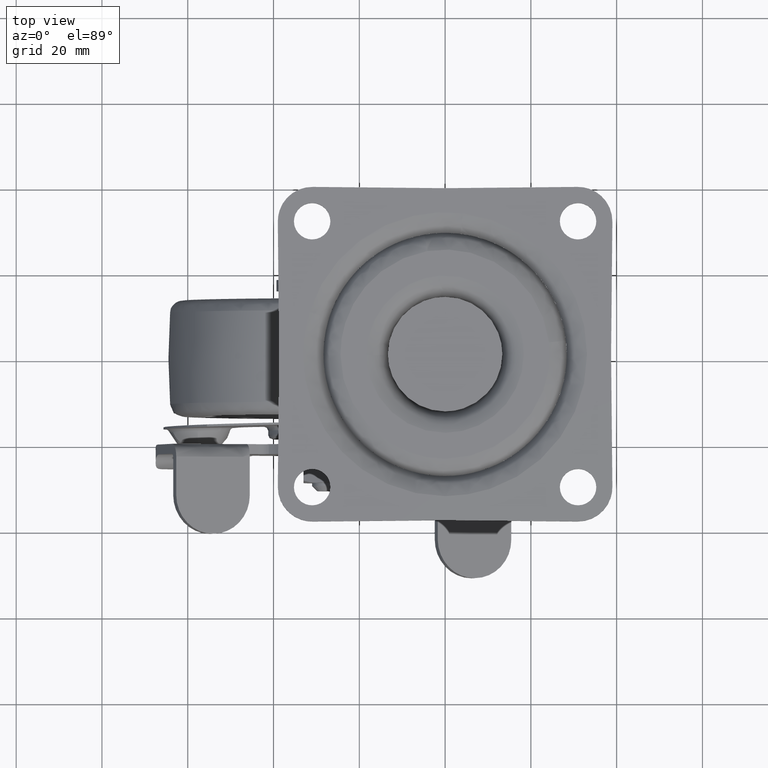
[diagram: clean part render]
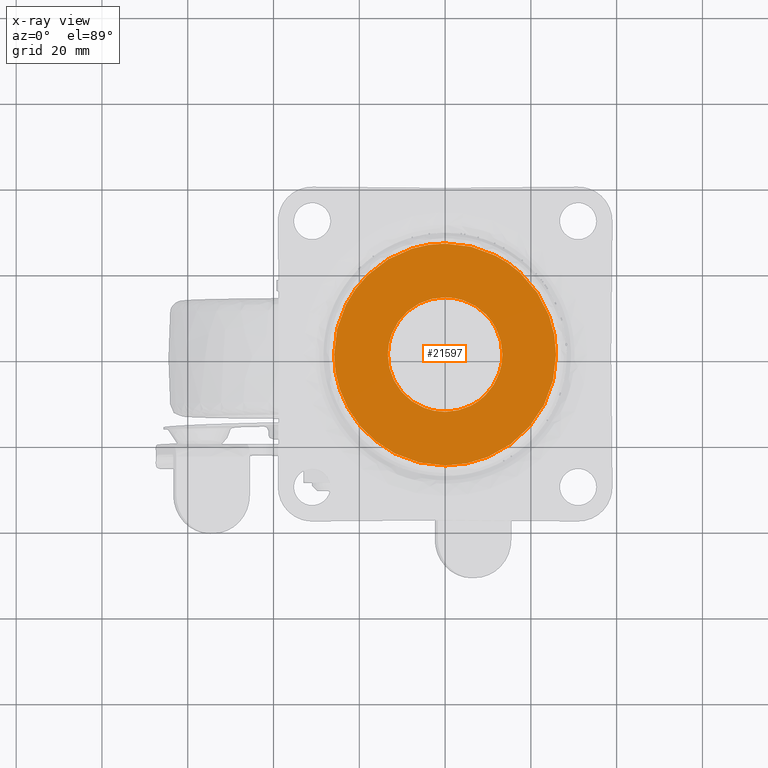
[diagram: x-ray — body ghosted, one internal face saturated and labeled with its STEP entity id]
A machine part, top view, then the same camera in x-ray: the body is ghosted and one INTERNAL B-rep face — a face not visible from any outside direction — is saturated and labeled: STEP entity #21597.
In plain terms, the highlighted face is a freeform B-spline surface patch.
Its self-contained STEP definition (entity closure, byte-faithful):
#19148=CARTESIAN_POINT('',(9.522148338718090,9.357389283720961,-6.357000999999910));
#19149=VERTEX_POINT('',#19148);
#19155=CARTESIAN_POINT('',(-0.000002327860077,13.350357999999799,-6.357000999999910));
#19156=VERTEX_POINT('',#19155);
#19157=CARTESIAN_POINT('',(9.522148338718090,9.357389283720961,-6.357000999999910));
#19158=CARTESIAN_POINT('',(8.864303249871275,10.027039644784930,-6.357000999999928));
#19159=CARTESIAN_POINT('',(7.620857352587254,11.050119760353761,-6.357000999999904));
#19160=CARTESIAN_POINT('',(5.348030758189267,12.317865382148639,-6.357000999999905));
#19161=CARTESIAN_POINT('',(2.871296581265731,13.145735621697460,-6.357000999999919));
#19162=CARTESIAN_POINT('',(0.938711021823126,13.350495056528921,-6.357000999999906));
#19163=CARTESIAN_POINT('',(-0.000002327860077,13.350357999999799,-6.357000999999910));
#19164=B_SPLINE_CURVE_WITH_KNOTS('',3,(#19157,#19158,#19159,#19160,#19161,#19162,#19163),.UNSPECIFIED.,.F.,.U.,(4,1,1,1,4),(0.000000040950418,2.816136285490698,4.804026126292881,7.785784243456143,10.601920488016370),.UNSPECIFIED.);
#19165=EDGE_CURVE('',#19149,#19156,#19164,.T.);
#19167=CARTESIAN_POINT('',(-13.350358000000000,0.0,-6.357000999999910));
#19168=VERTEX_POINT('',#19167);
#19169=CARTESIAN_POINT('',(-0.000002327860077,13.350357999999799,-6.357000999999910));
#19170=CARTESIAN_POINT('',(-1.310754461551973,13.350986540732899,-6.357000999999914));
#19171=CARTESIAN_POINT('',(-3.330977720730344,13.050264969731449,-6.357000999999889));
#19172=CARTESIAN_POINT('',(-5.880590458144964,12.048608790499310,-6.357000999999941));
#19173=CARTESIAN_POINT('',(-7.814266161715539,10.905718966154870,-6.357000999999880));
#19174=CARTESIAN_POINT('',(-9.734686270428933,9.269742293055463,-6.357000999999925));
#19175=CARTESIAN_POINT('',(-11.188247926708041,7.407209809880265,-6.357000999999928));
#19176=CARTESIAN_POINT('',(-12.193942124779561,5.525186448929405,-6.357000999999870));
#19177=CARTESIAN_POINT('',(-13.066648645106021,3.221795794102689,-6.357000999999971));
#19178=CARTESIAN_POINT('',(-13.350877152033879,1.310733384612928,-6.357000999999853));
#19179=CARTESIAN_POINT('',(-13.350358000000000,0.0,-6.357000999999910));
#19180=B_SPLINE_CURVE_WITH_KNOTS('',3,(#19169,#19170,#19171,#19172,#19173,#19174,#19175,#19176,#19177,#19178,#19179),.UNSPECIFIED.,.F.,.U.,(4,1,1,1,1,1,1,1,4),(0.000000136620827,3.932013850790348,6.061885524718758,8.191769235744308,10.649207049722520,13.598237419871030,15.236606809522970,17.038813266025699,20.970823577971242),.UNSPECIFIED.);
#19181=EDGE_CURVE('',#19156,#19168,#19180,.T.);
#19183=CARTESIAN_POINT('',(0.000002327859918,-13.350357999999799,-6.357000999999910));
#19184=VERTEX_POINT('',#19183);
#19185=CARTESIAN_POINT('',(-13.350358000000000,0.0,-6.357000999999910));
#19186=CARTESIAN_POINT('',(-13.350910071931660,-1.256127932074303,-6.357000999999908));
#19187=CARTESIAN_POINT('',(-13.086246319340420,-3.112580868107441,-6.357000999999909));
#19188=CARTESIAN_POINT('',(-12.148403000629880,-5.683710718440482,-6.357000999999920));
#19189=CARTESIAN_POINT('',(-10.877351456790411,-7.927907598929894,-6.357000999999880));
#19190=CARTESIAN_POINT('',(-9.066735710838735,-9.925577101206736,-6.357000999999973));
#19191=CARTESIAN_POINT('',(-6.989032541080070,-11.446581095342530,-6.357000999999870));
#19192=CARTESIAN_POINT('',(-5.079575822632185,-12.407711192023800,-6.357000999999905));
#19193=CARTESIAN_POINT('',(-2.730451907387059,-13.151934426589071,-6.357000999999930));
#19194=CARTESIAN_POINT('',(-1.037623963658211,-13.350596390898559,-6.357000999999896));
#19195=CARTESIAN_POINT('',(0.000002327859918,-13.350357999999799,-6.357000999999910));
#19196=B_SPLINE_CURVE_WITH_KNOTS('',3,(#19185,#19186,#19187,#19188,#19189,#19190,#19191,#19192,#19193,#19194,#19195),.UNSPECIFIED.,.F.,.U.,(4,1,1,1,1,1,1,1,4),(0.000000135812247,3.768174945819020,5.570381349995165,8.191770259858890,11.468412884655690,13.598239121577951,15.891955446204321,17.858000252816531,20.970826202028459),.UNSPECIFIED.);
#19197=EDGE_CURVE('',#19168,#19184,#19196,.T.);
#19199=CARTESIAN_POINT('',(9.357390095503316,-9.522149172600425,-6.357000999999910));
#19200=VERTEX_POINT('',#19199);
#19201=CARTESIAN_POINT('',(0.000002327859918,-13.350357999999799,-6.357000999999910));
#19202=CARTESIAN_POINT('',(1.026106999777285,-13.350561673149921,-6.357000999999904));
#19203=CARTESIAN_POINT('',(2.916149440708255,-13.131360024900030,-6.357000999999929));
#19204=CARTESIAN_POINT('',(5.330665912850595,-12.310621076349451,-6.357000999999901));
#19205=CARTESIAN_POINT('',(7.471854117197442,-11.147610937970770,-6.357000999999914));
#19206=CARTESIAN_POINT('',(8.702665180749190,-10.165745996083791,-6.357000999999910));
#19207=CARTESIAN_POINT('',(9.357390095503316,-9.522149172600425,-6.357000999999910));
#19208=B_SPLINE_CURVE_WITH_KNOTS('',3,(#19201,#19202,#19203,#19204,#19205,#19206,#19207),.UNSPECIFIED.,.F.,.U.,(4,1,1,1,4),(0.000000036682174,3.078275371522725,5.670465747897151,7.614663157738606,10.368904440006069),.UNSPECIFIED.);
#19209=EDGE_CURVE('',#19184,#19200,#19208,.T.);
#19246=CARTESIAN_POINT('',(13.350358000000000,0.0,-6.357000999999910));
#19247=VERTEX_POINT('',#19246);
#19248=CARTESIAN_POINT('',(9.357390095503316,-9.522149172600425,-6.357000999999910));
#19249=CARTESIAN_POINT('',(10.027009171883170,-8.864282152069828,-6.357000999999908));
#19250=CARTESIAN_POINT('',(11.261940429390700,-7.363696293230923,-6.357000999999914));
#19251=CARTESIAN_POINT('',(12.448185274147409,-5.037232382322500,-6.357000999999910));
#19252=CARTESIAN_POINT('',(13.180714268055119,-2.539973715901642,-6.357000999999905));
#19253=CARTESIAN_POINT('',(13.350513171225961,-0.938718086018640,-6.357000999999936));
#19254=CARTESIAN_POINT('',(13.350358000000000,0.0,-6.357000999999910));
#19255=B_SPLINE_CURVE_WITH_KNOTS('',3,(#19248,#19249,#19250,#19251,#19252,#19253,#19254),.UNSPECIFIED.,.F.,.U.,(4,1,1,1,4),(0.000000040935406,2.816135791343934,5.797893385308317,7.785782877279928,10.601918627668789),.UNSPECIFIED.);
#19256=EDGE_CURVE('',#19200,#19247,#19255,.T.);
#19258=CARTESIAN_POINT('',(13.350358000000000,0.0,-6.357000999999910));
#19259=CARTESIAN_POINT('',(13.350426774446650,0.810068400060128,-6.357000999999920));
#19260=CARTESIAN_POINT('',(13.197553392740110,2.484196059929982,-6.357000999999896));
#19261=CARTESIAN_POINT('',(12.554792135086030,4.727047961933864,-6.357000999999947));
#19262=CARTESIAN_POINT('',(11.403014169646671,7.117294136489965,-6.357000999999879));
#19263=CARTESIAN_POINT('',(10.317334071054409,8.548715217039133,-6.357000999999930));
#19264=CARTESIAN_POINT('',(9.522148338718090,9.357389283720961,-6.357000999999910));
#19265=B_SPLINE_CURVE_WITH_KNOTS('',3,(#19258,#19259,#19260,#19261,#19262,#19263,#19264),.UNSPECIFIED.,.F.,.U.,(4,1,1,1,4),(0.000000036668993,2.430211604035084,5.022459309558636,6.966606548313765,10.368906321451149),.UNSPECIFIED.);
#19266=EDGE_CURVE('',#19247,#19149,#19265,.T.);
#19524=CARTESIAN_POINT('',(-25.876686000000099,0.0,-6.357000999999910));
#19525=VERTEX_POINT('',#19524);
#19526=CARTESIAN_POINT('',(-18.047227980545241,18.544551467861218,-6.357001320150074));
#19527=VERTEX_POINT('',#19526);
#19528=CARTESIAN_POINT('',(-25.876686000000099,0.0,-6.357000999999910));
#19529=CARTESIAN_POINT('',(-25.877167256375252,2.046021855410960,-6.357001035322117));
#19530=CARTESIAN_POINT('',(-25.452946745310879,5.599347599517381,-6.357001096666124));
#19531=CARTESIAN_POINT('',(-23.987725796193249,9.953452203545734,-6.357001171834721));
#19532=CARTESIAN_POINT('',(-22.297956499492560,13.269348136967810,-6.357001229079808));
#19533=CARTESIAN_POINT('',(-20.410715482813028,16.032392859963071,-6.357001276780575));
#19534=CARTESIAN_POINT('',(-18.857552528308268,17.756011346907801,-6.357001306536843));
#19535=CARTESIAN_POINT('',(-18.047227980545241,18.544551467861218,-6.357001320150074));
#19536=B_SPLINE_CURVE_WITH_KNOTS('',3,(#19528,#19529,#19530,#19531,#19532,#19533,#19534,#19535),.UNSPECIFIED.,.F.,.U.,(4,1,1,1,1,4),(0.000000029986914,6.137958265491568,10.660634473759190,13.729622564771260,17.283187198712039,20.675206476901089),.UNSPECIFIED.);
#19537=EDGE_CURVE('',#19525,#19527,#19536,.T.);
#19609=CARTESIAN_POINT('',(17.482036336033161,19.078294869514909,-6.357000680950200));
#19610=VERTEX_POINT('',#19609);
#19616=CARTESIAN_POINT('',(25.876686000000099,0.0,-6.357000999999910));
#19617=VERTEX_POINT('',#19616);
#19618=CARTESIAN_POINT('',(17.482036336033161,19.078294869514909,-6.357000680950200));
#19619=CARTESIAN_POINT('',(18.594216264097689,18.059327832776130,-6.357000697990559));
#19620=CARTESIAN_POINT('',(20.639642556386448,15.826169309346540,-6.357000735336098));
#19621=CARTESIAN_POINT('',(22.717049248196599,12.561599471939349,-6.357000789930011));
#19622=CARTESIAN_POINT('',(24.211520934258409,9.308824760509664,-6.357000844326822));
#19623=CARTESIAN_POINT('',(25.479551547735358,5.362950713173921,-6.357000910314302));
#19624=CARTESIAN_POINT('',(25.877184616059012,2.067098296235616,-6.357000965431481));
#19625=CARTESIAN_POINT('',(25.876686000000099,0.0,-6.357000999999910));
#19626=B_SPLINE_CURVE_WITH_KNOTS('',3,(#19618,#19619,#19620,#19621,#19622,#19623,#19624,#19625),.UNSPECIFIED.,.F.,.U.,(4,1,1,1,1,4),(0.000000033824858,4.525161762002718,9.050329487999409,11.564302578676200,15.251473240600239,21.452622991018711),.UNSPECIFIED.);
#19627=EDGE_CURVE('',#19610,#19617,#19626,.T.);
#19629=CARTESIAN_POINT('',(-0.000003390465913,-25.876685999999879,-6.357000999999910));
#19630=VERTEX_POINT('',#19629);
#19631=CARTESIAN_POINT('',(25.876686000000099,0.0,-6.357000999999910));
#19632=CARTESIAN_POINT('',(25.876760661187539,-1.270208055706099,-6.357000999999905));
#19633=CARTESIAN_POINT('',(25.700949536038610,-3.651839645098296,-6.357000999999913));
#19634=CARTESIAN_POINT('',(24.965536542041072,-7.074078792489558,-6.357000999999892));
#19635=CARTESIAN_POINT('',(23.938048897380039,-9.973481129750905,-6.357000999999952));
#19636=CARTESIAN_POINT('',(22.264843616093142,-13.402336507043341,-6.357000999999797));
#19637=CARTESIAN_POINT('',(20.037093153540660,-16.586161129692609,-6.357000999999969));
#19638=CARTESIAN_POINT('',(16.961081085343121,-19.661763564718719,-6.357000999999888));
#19639=CARTESIAN_POINT('',(13.685743567288331,-22.106745127907200,-6.357000999999927));
#19640=CARTESIAN_POINT('',(9.662904296319354,-24.162793294141860,-6.357000999999821));
#19641=CARTESIAN_POINT('',(4.974939507660513,-25.553392351404788,-6.357001000000169));
#19642=CARTESIAN_POINT('',(1.693631249863411,-25.876896664817110,-6.357000999999473));
#19643=CARTESIAN_POINT('',(-0.000003390465913,-25.876685999999879,-6.357000999999910));
#19644=B_SPLINE_CURVE_WITH_KNOTS('',3,(#19631,#19632,#19633,#19634,#19635,#19636,#19637,#19638,#19639,#19640,#19641,#19642,#19643),.UNSPECIFIED.,.F.,.U.,(4,1,1,1,1,1,1,1,1,1,4),(0.000000113789298,3.810615704589267,7.144982941824907,10.479323994557991,13.019776717942509,18.577036319049359,22.070035651965199,26.039495734538029,30.802858214179320,35.566207602406550,40.647068992704789),.UNSPECIFIED.);
#19645=EDGE_CURVE('',#19617,#19630,#19644,.T.);
#19647=CARTESIAN_POINT('',(-0.000003390465913,-25.876685999999879,-6.357000999999910));
#19648=CARTESIAN_POINT('',(-1.164357210715833,-25.876727693454729,-6.357000999999912));
#19649=CARTESIAN_POINT('',(-3.546009397805748,-25.715694398396369,-6.357000999999926));
#19650=CARTESIAN_POINT('',(-6.818264934870906,-25.033427278125181,-6.357000999999882));
#19651=CARTESIAN_POINT('',(-10.276817169014560,-23.843648134600731,-6.357000999999926));
#19652=CARTESIAN_POINT('',(-14.108413562401241,-21.885703519121730,-6.357000999999875));
#19653=CARTESIAN_POINT('',(-17.499412464450540,-19.222611631066989,-6.357001000000061));
#19654=CARTESIAN_POINT('',(-20.115282216015618,-16.371255616561790,-6.357000999999791));
#19655=CARTESIAN_POINT('',(-22.227647807255611,-13.449079496261900,-6.357001000000013));
#19656=CARTESIAN_POINT('',(-24.283919212856951,-9.426313073669219,-6.357000999999929));
#19657=CARTESIAN_POINT('',(-25.604357242276411,-4.710393382741727,-6.357000999999797));
#19658=CARTESIAN_POINT('',(-25.876763108400262,-1.428980358188079,-6.357001000000003));
#19659=CARTESIAN_POINT('',(-25.876686000000099,0.0,-6.357000999999910));
#19660=B_SPLINE_CURVE_WITH_KNOTS('',3,(#19647,#19648,#19649,#19650,#19651,#19652,#19653,#19654,#19655,#19656,#19657,#19658,#19659),.UNSPECIFIED.,.F.,.U.,(4,1,1,1,1,1,1,1,1,1,4),(0.000000114038372,3.493064083242011,7.144982270016214,10.002988912490700,14.448774715844049,20.006014939564189,22.863944868270440,26.039493285481559,30.802855317965381,36.360111128727638,40.647065170853637),.UNSPECIFIED.);
#19661=EDGE_CURVE('',#19630,#19525,#19660,.T.);
#19680=CARTESIAN_POINT('',(0.000003390466541,25.876685999999879,-6.357000999999910));
#19681=VERTEX_POINT('',#19680);
#19682=CARTESIAN_POINT('',(-18.047227980545241,18.544551467861218,-6.357001320150074));
#19683=CARTESIAN_POINT('',(-16.482177210336260,20.068579364363011,-6.357001292386743));
#19684=CARTESIAN_POINT('',(-13.633077193165761,22.211417066116891,-6.357001241844958));
#19685=CARTESIAN_POINT('',(-8.960534626147192,24.412179639822551,-6.357001158955905));
#19686=CARTESIAN_POINT('',(-4.628877714664945,25.603150061652649,-6.357001082114743));
#19687=CARTESIAN_POINT('',(-1.508288597100367,25.876807161527029,-6.357001026755727));
#19688=CARTESIAN_POINT('',(0.000003390466541,25.876685999999879,-6.357000999999910));
#19689=B_SPLINE_CURVE_WITH_KNOTS('',3,(#19682,#19683,#19684,#19685,#19686,#19687,#19688),.UNSPECIFIED.,.F.,.U.,(4,1,1,1,4),(0.000000028580434,6.553269698211659,10.610031599929840,15.446989947305941,19.971863272331522),.UNSPECIFIED.);
#19690=EDGE_CURVE('',#19527,#19681,#19689,.T.);
#19692=CARTESIAN_POINT('',(0.000003390466541,25.876685999999879,-6.357000999999910));
#19693=CARTESIAN_POINT('',(1.849507332072707,25.877052627516768,-6.357000966246209));
#19694=CARTESIAN_POINT('',(4.648523245509957,25.575181490420849,-6.357000915163700));
#19695=CARTESIAN_POINT('',(8.750191994680751,24.442385131063158,-6.357000840307706));
#19696=CARTESIAN_POINT('',(12.939377114688989,22.629114806909900,-6.357000763854341));
#19697=CARTESIAN_POINT('',(15.897664417654619,20.530807552799129,-6.357000709865281));
#19698=CARTESIAN_POINT('',(17.482036336033161,19.078294869514909,-6.357000680950200));
#19699=B_SPLINE_CURVE_WITH_KNOTS('',3,(#19692,#19693,#19694,#19695,#19696,#19697,#19698),.UNSPECIFIED.,.F.,.U.,(4,1,1,1,4),(0.000000024947184,5.548398367060679,8.397589064738611,12.746302430306541,19.194442068256858),.UNSPECIFIED.);
#19700=EDGE_CURVE('',#19681,#19610,#19699,.T.);
#21576=CARTESIAN_POINT('',(-28.461767316915662,-28.461767316915410,-6.357000999999910));
#21577=CARTESIAN_POINT('',(28.461768242338071,-28.461767316915410,-6.357000999999910));
#21578=CARTESIAN_POINT('',(-28.461767316915662,28.461768242337818,-6.357000999999910));
#21579=CARTESIAN_POINT('',(28.461768242338071,28.461768242337818,-6.357000999999910));
#21580=B_SPLINE_SURFACE_WITH_KNOTS('',1,1,((#21576,#21578),(#21577,#21579)),.UNSPECIFIED.,.F.,.F.,.U.,(2,2),(2,2),(0.0,56.923535559253722),(0.0,56.923535559253231),.UNSPECIFIED.);
#21581=ORIENTED_EDGE('',*,*,#19661,.F.);
#21582=ORIENTED_EDGE('',*,*,#19645,.F.);
#21583=ORIENTED_EDGE('',*,*,#19627,.F.);
#21584=ORIENTED_EDGE('',*,*,#19700,.F.);
#21585=ORIENTED_EDGE('',*,*,#19690,.F.);
#21586=ORIENTED_EDGE('',*,*,#19537,.F.);
#21587=EDGE_LOOP('',(#21581,#21582,#21583,#21584,#21585,#21586));
#21588=FACE_OUTER_BOUND('',#21587,.T.);
#21589=ORIENTED_EDGE('',*,*,#19181,.F.);
#21590=ORIENTED_EDGE('',*,*,#19165,.F.);
#21591=ORIENTED_EDGE('',*,*,#19266,.F.);
#21592=ORIENTED_EDGE('',*,*,#19256,.F.);
#21593=ORIENTED_EDGE('',*,*,#19209,.F.);
#21594=ORIENTED_EDGE('',*,*,#19197,.F.);
#21595=EDGE_LOOP('',(#21589,#21590,#21591,#21592,#21593,#21594));
#21596=FACE_BOUND('',#21595,.T.);
#21597=ADVANCED_FACE('',(#21588,#21596),#21580,.T.);